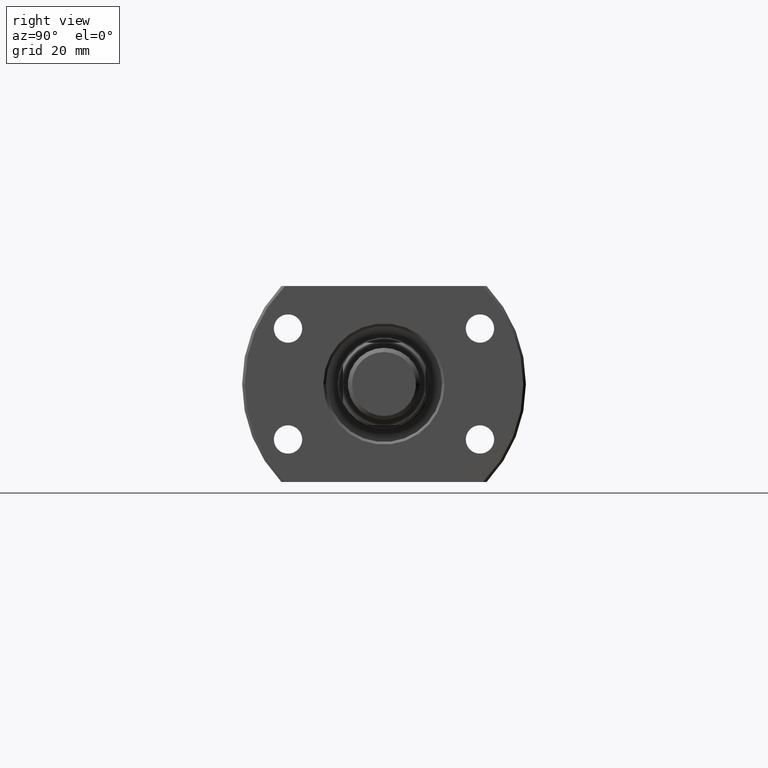
[diagram: clean part render]
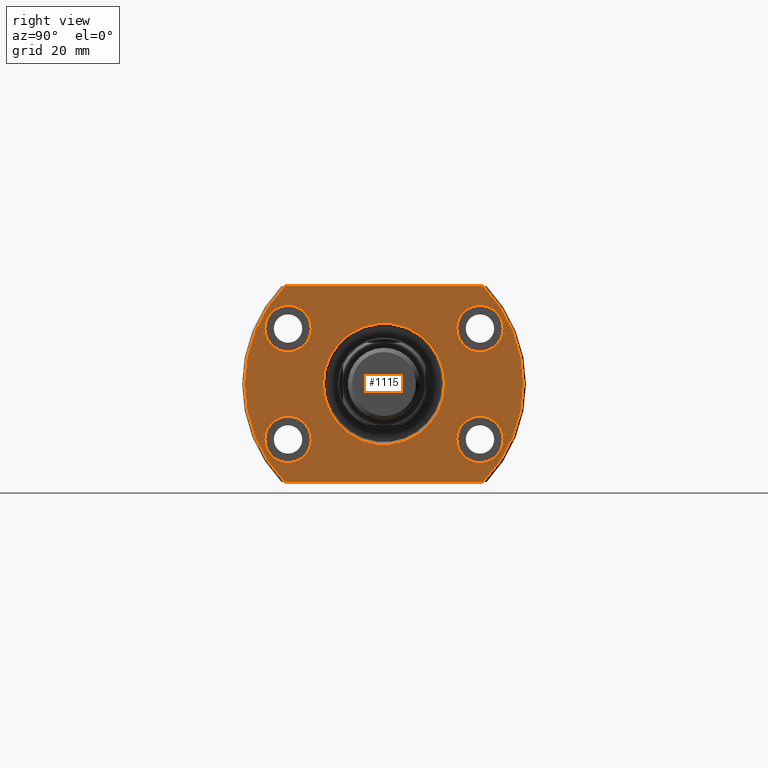
[diagram: same view with one face highlighted and labeled with its STEP entity id]
A machine part, right view. The second image highlights one B-rep face of the part: STEP entity #1115.
In plain terms, the highlighted planar face has unit normal (-1, -0, 0).
Its self-contained STEP definition (entity closure, byte-faithful):
#63 = DIRECTION ( 'NONE',  ( 1.000000000000000000, -2.883293662278287419E-14, -3.155443620884046521E-30 ) ) ;
#74 = AXIS2_PLACEMENT_3D ( 'NONE', #1204, #2338, #345 ) ;
#106 = ORIENTED_EDGE ( 'NONE', *, *, #3211, .T. ) ;
#125 = VERTEX_POINT ( 'NONE', #188 ) ;
#182 = CARTESIAN_POINT ( 'NONE',  ( 26.50000000000054001, 18.59999999999923403, -10.75000000000000000 ) ) ;
#188 = CARTESIAN_POINT ( 'NONE',  ( 26.49999999999933564, -23.10000000000076881, -10.75000000000000000 ) ) ;
#191 = CIRCLE ( 'NONE', #74, 4.500000000000000888 ) ;
#199 = AXIS2_PLACEMENT_3D ( 'NONE', #2085, #63, #3242 ) ;
#208 = CIRCLE ( 'NONE', #3545, 11.74999999999932498 ) ;
#220 = EDGE_CURVE ( 'NONE', #2664, #1773, #1381, .T. ) ;
#245 = ORIENTED_EDGE ( 'NONE', *, *, #2663, .F. ) ;
#264 = EDGE_CURVE ( 'NONE', #1950, #2183, #191, .T. ) ;
#285 = DIRECTION ( 'NONE',  ( 1.000000000000000000, -2.886466111666351885E-14, 0.000000000000000000 ) ) ;
#290 = VERTEX_POINT ( 'NONE', #3483 ) ;
#303 = CARTESIAN_POINT ( 'NONE',  ( 26.50000000000054001, 18.59999999999923403, 10.75000000000000000 ) ) ;
#316 = AXIS2_PLACEMENT_3D ( 'NONE', #1775, #2058, #1791 ) ;
#325 = CARTESIAN_POINT ( 'NONE',  ( 26.50000000000000355, 11.74999999999861622, 0.000000000000000000 ) ) ;
#345 = DIRECTION ( 'NONE',  ( 2.852656382717415620E-14, 1.000000000000000000, 0.000000000000000000 ) ) ;
#366 = DIRECTION ( 'NONE',  ( 2.852656382717415620E-14, 1.000000000000000000, 0.000000000000000000 ) ) ;
#443 = DIRECTION ( 'NONE',  ( -1.000000000000000000, -9.242617352055502386E-18, 0.000000000000000000 ) ) ;
#494 = DIRECTION ( 'NONE',  ( 0.000000000000000000, 1.000000000000000000, 0.000000000000000000 ) ) ;
#509 = CIRCLE ( 'NONE', #2602, 27.00000000000000000 ) ;
#511 = CARTESIAN_POINT ( 'NONE',  ( 26.50000000000054001, 18.59999999999923403, -10.75000000000000000 ) ) ;
#538 = FACE_BOUND ( 'NONE', #1680, .T. ) ;
#587 = VERTEX_POINT ( 'NONE', #1554 ) ;
#607 = EDGE_CURVE ( 'NONE', #125, #1221, #2991, .T. ) ;
#617 = LINE ( 'NONE', #1738, #1922 ) ;
#623 = EDGE_LOOP ( 'NONE', ( #1026, #1937 ) ) ;
#630 = CIRCLE ( 'NONE', #2286, 4.500000000000000888 ) ;
#637 = DIRECTION ( 'NONE',  ( 2.852656382717415620E-14, 1.000000000000000000, 0.000000000000000000 ) ) ;
#642 = VERTEX_POINT ( 'NONE', #700 ) ;
#653 = DIRECTION ( 'NONE',  ( 9.242617352055502386E-18, -1.000000000000000000, 0.000000000000000000 ) ) ;
#700 = CARTESIAN_POINT ( 'NONE',  ( 26.50000000000000355, -27.00000000000000355, 0.000000000000000000 ) ) ;
#716 = DIRECTION ( 'NONE',  ( 0.000000000000000000, -1.000000000000000000, 0.000000000000000000 ) ) ;
#720 = CARTESIAN_POINT ( 'NONE',  ( 26.50000000000000355, 19.18332609325086580, -19.00000000000001066 ) ) ;
#758 = EDGE_CURVE ( 'NONE', #642, #1039, #3423, .T. ) ;
#779 = DIRECTION ( 'NONE',  ( -0.000000000000000000, 1.000000000000000000, 0.000000000000000000 ) ) ;
#783 = ORIENTED_EDGE ( 'NONE', *, *, #1151, .F. ) ;
#850 = CARTESIAN_POINT ( 'NONE',  ( 26.49999999999933564, -23.10000000000076881, 10.75000000000000000 ) ) ;
#892 = CARTESIAN_POINT ( 'NONE',  ( 26.50000000000000355, -27.00000000000000000, 0.000000000000000000 ) ) ;
#932 = EDGE_CURVE ( 'NONE', #2183, #1950, #3489, .T. ) ;
#936 = CARTESIAN_POINT ( 'NONE',  ( 26.50000000000000355, -11.75000000000071054, 1.438959988998140752E-15 ) ) ;
#939 = VERTEX_POINT ( 'NONE', #720 ) ;
#956 = VERTEX_POINT ( 'NONE', #936 ) ;
#967 = EDGE_LOOP ( 'NONE', ( #783, #245 ) ) ;
#1026 = ORIENTED_EDGE ( 'NONE', *, *, #2683, .T. ) ;
#1035 = CARTESIAN_POINT ( 'NONE',  ( 26.50000000000000355, 2.449293598294708386E-16, 0.000000000000000000 ) ) ;
#1039 = VERTEX_POINT ( 'NONE', #2430 ) ;
#1089 = FACE_BOUND ( 'NONE', #2114, .T. ) ;
#1115 = ADVANCED_FACE ( 'NONE', ( #3638, #2445, #3579, #1089, #538, #2243 ), #2610, .F. ) ;
#1151 = EDGE_CURVE ( 'NONE', #3175, #587, #2822, .T. ) ;
#1156 = VERTEX_POINT ( 'NONE', #325 ) ;
#1204 = CARTESIAN_POINT ( 'NONE',  ( 26.49999999999946354, -18.60000000000076881, 10.75000000000000000 ) ) ;
#1220 = AXIS2_PLACEMENT_3D ( 'NONE', #3448, #285, #366 ) ;
#1221 = VERTEX_POINT ( 'NONE', #2304 ) ;
#1309 = DIRECTION ( 'NONE',  ( 1.000000000000000000, -2.883293662278287419E-14, -3.155443620884046521E-30 ) ) ;
#1322 = DIRECTION ( 'NONE',  ( 2.852656382717415620E-14, 1.000000000000000000, 0.000000000000000000 ) ) ;
#1323 = ORIENTED_EDGE ( 'NONE', *, *, #264, .F. ) ;
#1334 = DIRECTION ( 'NONE',  ( 1.000000000000000000, 9.242617352055502386E-18, -0.000000000000000000 ) ) ;
#1381 = CIRCLE ( 'NONE', #1785, 4.500000000000000888 ) ;
#1552 = CARTESIAN_POINT ( 'NONE',  ( 26.50000000000000355, -7.069515144664183387E-13, 0.000000000000000000 ) ) ;
#1554 = CARTESIAN_POINT ( 'NONE',  ( 26.50000000000041211, 14.09999999999923403, 10.75000000000000000 ) ) ;
#1586 = CARTESIAN_POINT ( 'NONE',  ( 26.49999999999946354, -18.60000000000076881, -10.75000000000000000 ) ) ;
#1642 = LINE ( 'NONE', #3328, #2761 ) ;
#1680 = EDGE_LOOP ( 'NONE', ( #1994, #2362 ) ) ;
#1698 = DIRECTION ( 'NONE',  ( -1.000000000000000000, -9.242617352055502386E-18, 0.000000000000000000 ) ) ;
#1718 = CARTESIAN_POINT ( 'NONE',  ( 26.50000000000000355, 2.449293598294708386E-16, 0.000000000000000000 ) ) ;
#1738 = CARTESIAN_POINT ( 'NONE',  ( 26.50000000000000355, -27.00000000000000000, -19.00000000000001066 ) ) ;
#1773 = VERTEX_POINT ( 'NONE', #3345 ) ;
#1775 = CARTESIAN_POINT ( 'NONE',  ( 26.49999999999946354, -18.60000000000076881, 10.75000000000000000 ) ) ;
#1785 = AXIS2_PLACEMENT_3D ( 'NONE', #511, #1893, #3061 ) ;
#1791 = DIRECTION ( 'NONE',  ( 2.852656382717415620E-14, 1.000000000000000000, 0.000000000000000000 ) ) ;
#1869 = ORIENTED_EDGE ( 'NONE', *, *, #2816, .F. ) ;
#1882 = DIRECTION ( 'NONE',  ( 1.000000000000000000, 9.242617352055502386E-18, -0.000000000000000000 ) ) ;
#1893 = DIRECTION ( 'NONE',  ( 1.000000000000000000, -2.883293662278287419E-14, -3.155443620884046521E-30 ) ) ;
#1922 = VECTOR ( 'NONE', #2894, 1000.000000000000000 ) ;
#1937 = ORIENTED_EDGE ( 'NONE', *, *, #2957, .T. ) ;
#1950 = VERTEX_POINT ( 'NONE', #850 ) ;
#1994 = ORIENTED_EDGE ( 'NONE', *, *, #220, .F. ) ;
#2009 = ORIENTED_EDGE ( 'NONE', *, *, #607, .F. ) ;
#2034 = DIRECTION ( 'NONE',  ( 1.000000000000000000, -2.886466111666351885E-14, 0.000000000000000000 ) ) ;
#2038 = AXIS2_PLACEMENT_3D ( 'NONE', #1586, #1309, #3599 ) ;
#2058 = DIRECTION ( 'NONE',  ( 1.000000000000000000, -2.883293662278287419E-14, -3.155443620884046521E-30 ) ) ;
#2085 = CARTESIAN_POINT ( 'NONE',  ( 26.49999999999946354, -18.60000000000076881, -10.75000000000000000 ) ) ;
#2114 = EDGE_LOOP ( 'NONE', ( #2269, #2009 ) ) ;
#2145 = CARTESIAN_POINT ( 'NONE',  ( 26.50000000000066791, 23.09999999999923403, 10.75000000000000000 ) ) ;
#2183 = VERTEX_POINT ( 'NONE', #3201 ) ;
#2243 = FACE_OUTER_BOUND ( 'NONE', #2303, .T. ) ;
#2269 = ORIENTED_EDGE ( 'NONE', *, *, #2454, .F. ) ;
#2286 = AXIS2_PLACEMENT_3D ( 'NONE', #303, #2034, #637 ) ;
#2303 = EDGE_LOOP ( 'NONE', ( #1869, #3117, #2520, #2869, #106 ) ) ;
#2304 = CARTESIAN_POINT ( 'NONE',  ( 26.49999999999959499, -14.10000000000076881, -10.75000000000000000 ) ) ;
#2338 = DIRECTION ( 'NONE',  ( 1.000000000000000000, -2.883293662278287419E-14, -3.155443620884046521E-30 ) ) ;
#2362 = ORIENTED_EDGE ( 'NONE', *, *, #2914, .F. ) ;
#2430 = CARTESIAN_POINT ( 'NONE',  ( 26.50000000000000355, -19.18332609325086580, -19.00000000000001066 ) ) ;
#2444 = CARTESIAN_POINT ( 'NONE',  ( 26.50000000000000355, 2.449293598294708386E-16, 0.000000000000000000 ) ) ;
#2445 = FACE_BOUND ( 'NONE', #967, .T. ) ;
#2454 = EDGE_CURVE ( 'NONE', #1221, #125, #3654, .T. ) ;
#2462 = ORIENTED_EDGE ( 'NONE', *, *, #932, .F. ) ;
#2477 = DIRECTION ( 'NONE',  ( 0.000000000000000000, 1.000000000000000000, 0.000000000000000000 ) ) ;
#2511 = DIRECTION ( 'NONE',  ( -1.000000000000000000, -9.242617352055502386E-18, 0.000000000000000000 ) ) ;
#2520 = ORIENTED_EDGE ( 'NONE', *, *, #758, .T. ) ;
#2595 = DIRECTION ( 'NONE',  ( 0.000000000000000000, 1.000000000000000000, 0.000000000000000000 ) ) ;
#2602 = AXIS2_PLACEMENT_3D ( 'NONE', #1718, #2868, #2595 ) ;
#2610 = PLANE ( 'NONE',  #3478 ) ;
#2626 = CARTESIAN_POINT ( 'NONE',  ( 26.50000000000066791, 23.09999999999923403, -10.75000000000000000 ) ) ;
#2663 = EDGE_CURVE ( 'NONE', #587, #3175, #630, .T. ) ;
#2664 = VERTEX_POINT ( 'NONE', #2626 ) ;
#2683 = EDGE_CURVE ( 'NONE', #1156, #956, #208, .T. ) ;
#2739 = DIRECTION ( 'NONE',  ( 1.000000000000000000, -2.883293662278287419E-14, -3.155443620884046521E-30 ) ) ;
#2761 = VECTOR ( 'NONE', #779, 1000.000000000000000 ) ;
#2768 = CIRCLE ( 'NONE', #3662, 11.74999999999932498 ) ;
#2812 = DIRECTION ( 'NONE',  ( 0.000000000000000000, -1.000000000000000000, 0.000000000000000000 ) ) ;
#2816 = EDGE_CURVE ( 'NONE', #3469, #290, #1642, .T. ) ;
#2822 = CIRCLE ( 'NONE', #1220, 4.500000000000000888 ) ;
#2827 = AXIS2_PLACEMENT_3D ( 'NONE', #182, #2739, #1322 ) ;
#2868 = DIRECTION ( 'NONE',  ( 1.000000000000000000, 9.242617352055502386E-18, -0.000000000000000000 ) ) ;
#2869 = ORIENTED_EDGE ( 'NONE', *, *, #3162, .T. ) ;
#2894 = DIRECTION ( 'NONE',  ( -9.242617352055502386E-18, 1.000000000000000000, -0.000000000000000000 ) ) ;
#2914 = EDGE_CURVE ( 'NONE', #1773, #2664, #3494, .T. ) ;
#2957 = EDGE_CURVE ( 'NONE', #956, #1156, #2768, .T. ) ;
#2991 = CIRCLE ( 'NONE', #199, 4.500000000000000888 ) ;
#3061 = DIRECTION ( 'NONE',  ( 2.852656382717415620E-14, 1.000000000000000000, 0.000000000000000000 ) ) ;
#3117 = ORIENTED_EDGE ( 'NONE', *, *, #3628, .T. ) ;
#3162 = EDGE_CURVE ( 'NONE', #1039, #939, #617, .T. ) ;
#3175 = VERTEX_POINT ( 'NONE', #2145 ) ;
#3178 = AXIS2_PLACEMENT_3D ( 'NONE', #1035, #1334, #494 ) ;
#3201 = CARTESIAN_POINT ( 'NONE',  ( 26.49999999999959499, -14.10000000000076881, 10.75000000000000000 ) ) ;
#3211 = EDGE_CURVE ( 'NONE', #939, #290, #3602, .T. ) ;
#3242 = DIRECTION ( 'NONE',  ( 2.852656382717415620E-14, 1.000000000000000000, 0.000000000000000000 ) ) ;
#3305 = AXIS2_PLACEMENT_3D ( 'NONE', #2444, #1882, #2477 ) ;
#3328 = CARTESIAN_POINT ( 'NONE',  ( 26.50000000000000355, 19.88089535207168623, 19.00000000000001066 ) ) ;
#3345 = CARTESIAN_POINT ( 'NONE',  ( 26.50000000000041211, 14.09999999999923403, -10.75000000000000000 ) ) ;
#3423 = CIRCLE ( 'NONE', #3178, 27.00000000000000000 ) ;
#3448 = CARTESIAN_POINT ( 'NONE',  ( 26.50000000000054001, 18.59999999999923403, 10.75000000000000000 ) ) ;
#3457 = CARTESIAN_POINT ( 'NONE',  ( 26.50000000000000355, -19.18332609325086224, 19.00000000000000711 ) ) ;
#3469 = VERTEX_POINT ( 'NONE', #3457 ) ;
#3478 = AXIS2_PLACEMENT_3D ( 'NONE', #892, #1698, #653 ) ;
#3483 = CARTESIAN_POINT ( 'NONE',  ( 26.50000000000000355, 19.18332609325086935, 19.00000000000000711 ) ) ;
#3489 = CIRCLE ( 'NONE', #316, 4.500000000000000888 ) ;
#3494 = CIRCLE ( 'NONE', #2827, 4.500000000000000888 ) ;
#3545 = AXIS2_PLACEMENT_3D ( 'NONE', #1552, #443, #716 ) ;
#3566 = CARTESIAN_POINT ( 'NONE',  ( 26.50000000000000355, -7.069515144664183387E-13, 0.000000000000000000 ) ) ;
#3579 = FACE_BOUND ( 'NONE', #3689, .T. ) ;
#3599 = DIRECTION ( 'NONE',  ( 2.852656382717415620E-14, 1.000000000000000000, 0.000000000000000000 ) ) ;
#3602 = CIRCLE ( 'NONE', #3305, 27.00000000000000000 ) ;
#3628 = EDGE_CURVE ( 'NONE', #3469, #642, #509, .T. ) ;
#3638 = FACE_BOUND ( 'NONE', #623, .T. ) ;
#3654 = CIRCLE ( 'NONE', #2038, 4.500000000000000888 ) ;
#3662 = AXIS2_PLACEMENT_3D ( 'NONE', #3566, #2511, #2812 ) ;
#3689 = EDGE_LOOP ( 'NONE', ( #2462, #1323 ) ) ;